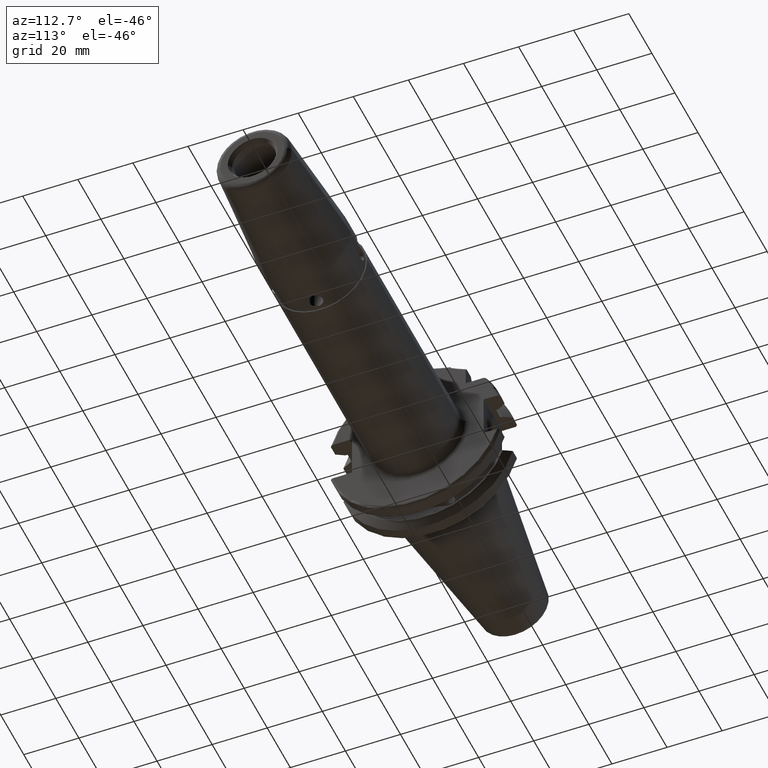
[diagram: clean part render]
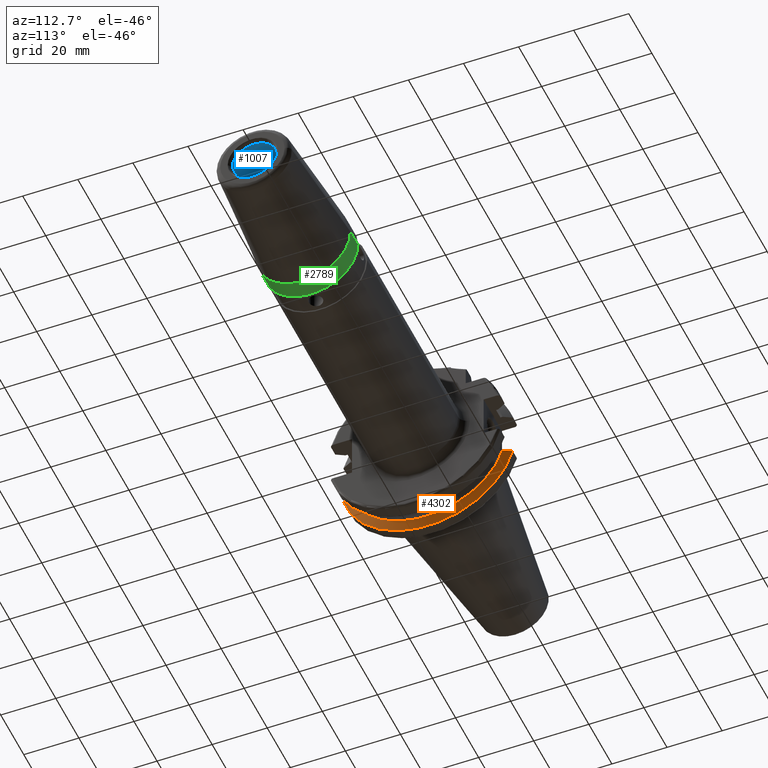
[diagram: same view with three faces highlighted in distinct colors, each labeled with its STEP entity id]
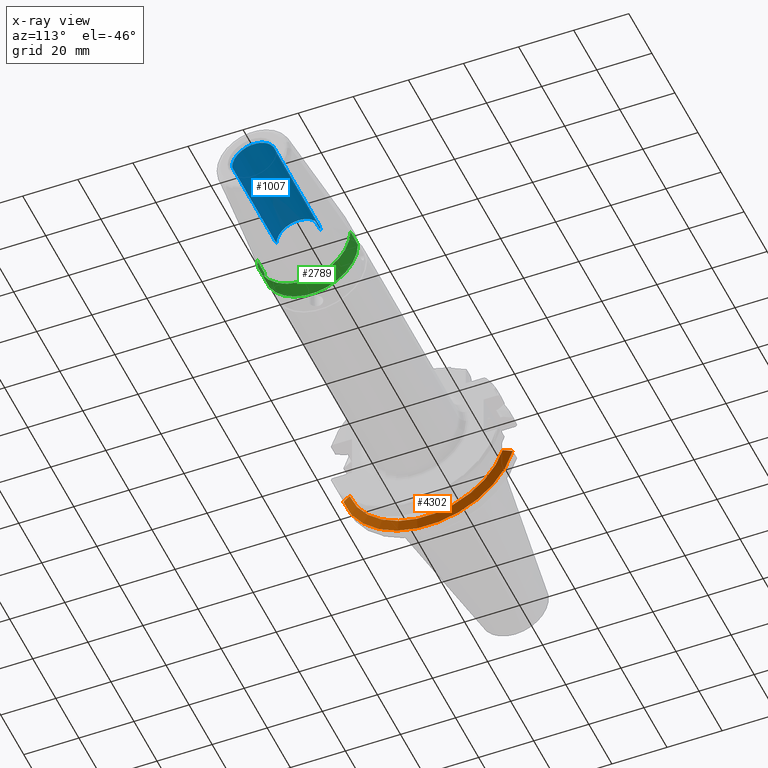
[diagram: x-ray of the same camera — body ghosted, the three highlighted faces saturated]
A machine part, auxiliary view with three faces highlighted in distinct colors.
The next image is the same camera in x-ray (body ghosted, the three faces saturated) — at least one of them is partly hidden behind the body in this view.
Their STEP definitions:

[orange] entity #4302 — the highlighted conical surface has half-angle 60 deg.
#15 = CARTESIAN_POINT ( 'NONE',  ( 9.224999999999999645, 8.049999999999991829, 27.75371168065689886 ) ) ;
#122 = EDGE_LOOP ( 'NONE', ( #4977, #5286, #4369, #906 ) ) ;
#225 = CARTESIAN_POINT ( 'NONE',  ( 7.563729601213531772, 8.049999999999993605, -30.73838195156016440 ) ) ;
#298 = DIRECTION ( 'NONE',  ( -1.000000000000000000, -1.806543779445901364E-16, 0.0000000000000000000 ) ) ;
#605 = VERTEX_POINT ( 'NONE', #1181 ) ;
#749 = CARTESIAN_POINT ( 'NONE',  ( 9.224999999999999645, 8.049999999999991829, 27.75371168065689886 ) ) ;
#906 = ORIENTED_EDGE ( 'NONE', *, *, #7000, .T. ) ;
#1165 = CARTESIAN_POINT ( 'NONE',  ( 7.563729601213531772, -1.734723475976807094E-15, -7.489693497978174534E-17 ) ) ;
#1181 = CARTESIAN_POINT ( 'NONE',  ( 7.563729601213531772, 8.049999999999993605, -30.73838195156016440 ) ) ;
#1372 = EDGE_CURVE ( 'NONE', #605, #5848, #6383, .T. ) ;
#1588 = CIRCLE ( 'NONE', #2981, 31.77499999999999147 ) ;
#1714 = DIRECTION ( 'NONE',  ( 1.910789037267923442E-16, -1.000000000000000000, 0.0000000000000000000 ) ) ;
#1871 = CARTESIAN_POINT ( 'NONE',  ( 8.672853181540689960, 8.049999999999993605, -28.74947433268971153 ) ) ;
#1899 = CARTESIAN_POINT ( 'NONE',  ( 9.224999999999999645, 8.049999999999991829, -27.75371168065689886 ) ) ;
#1975 = VERTEX_POINT ( 'NONE', #4092 ) ;
#2375 = CARTESIAN_POINT ( 'NONE',  ( 7.563729601213531772, 8.049999999999993605, 30.73838195156016440 ) ) ;
#2736 = CARTESIAN_POINT ( 'NONE',  ( 9.225000000000001421, -1.734723475976807094E-15, -7.489693497978174534E-17 ) ) ;
#2981 = AXIS2_PLACEMENT_3D ( 'NONE', #1165, #4961, #1714 ) ;
#3050 = EDGE_CURVE ( 'NONE', #1975, #605, #1588, .T. ) ;
#3564 = CARTESIAN_POINT ( 'NONE',  ( 9.225000000000001421, -1.734723475976807094E-15, -7.489693497978174534E-17 ) ) ;
#3789 = FACE_OUTER_BOUND ( 'NONE', #122, .T. ) ;
#3905 = EDGE_CURVE ( 'NONE', #1975, #6301, #5993, .T. ) ;
#3996 = AXIS2_PLACEMENT_3D ( 'NONE', #3564, #298, #4098 ) ;
#4011 = CARTESIAN_POINT ( 'NONE',  ( 8.672842016305649437, 8.049999999999993605, 28.74949446850084911 ) ) ;
#4092 = CARTESIAN_POINT ( 'NONE',  ( 7.563729601213531772, 8.049999999999993605, 30.73838195156016440 ) ) ;
#4098 = DIRECTION ( 'NONE',  ( 1.800900864017274041E-16, -1.000000000000000000, 0.0000000000000000000 ) ) ;
#4302 = ADVANCED_FACE ( 'NONE', ( #3789 ), #6310, .T. ) ;
#4369 = ORIENTED_EDGE ( 'NONE', *, *, #3905, .T. ) ;
#4492 = CARTESIAN_POINT ( 'NONE',  ( 9.224999999999999645, 8.049999999999991829, -27.75371168065689886 ) ) ;
#4961 = DIRECTION ( 'NONE',  ( -1.000000000000000000, -1.806543779445901364E-16, 0.0000000000000000000 ) ) ;
#4977 = ORIENTED_EDGE ( 'NONE', *, *, #1372, .F. ) ;
#5286 = ORIENTED_EDGE ( 'NONE', *, *, #3050, .F. ) ;
#5651 = CARTESIAN_POINT ( 'NONE',  ( 8.118944993532615229, 8.049999999999993605, -29.74428971667221688 ) ) ;
#5848 = VERTEX_POINT ( 'NONE', #4492 ) ;
#5960 = DIRECTION ( 'NONE',  ( 1.800900864017274041E-16, -1.000000000000000000, 0.0000000000000000000 ) ) ;
#5993 = B_SPLINE_CURVE_WITH_KNOTS ( 'NONE', 3,
 ( #2375, #6159, #4011, #749 ),
 .UNSPECIFIED., .F., .F.,
 ( 4, 4 ),
 ( 0.009974651295812222984, 0.01339048803841443730 ),
 .UNSPECIFIED. ) ;
#6159 = CARTESIAN_POINT ( 'NONE',  ( 8.118936303650578168, 8.049999999999993605, 29.74430527557850112 ) ) ;
#6301 = VERTEX_POINT ( 'NONE', #15 ) ;
#6310 = CONICAL_SURFACE ( 'NONE', #6398, 28.89759526419164004, 1.047197551196594523 ) ;
#6383 = B_SPLINE_CURVE_WITH_KNOTS ( 'NONE', 3,
 ( #225, #5651, #1871, #1899 ),
 .UNSPECIFIED., .F., .F.,
 ( 4, 4 ),
 ( 0.01642707667485877182, 0.01984294225823545962 ),
 .UNSPECIFIED. ) ;
#6398 = AXIS2_PLACEMENT_3D ( 'NONE', #2736, #6499, #5960 ) ;
#6499 = DIRECTION ( 'NONE',  ( -1.000000000000000000, -1.806543779445901364E-16, 0.0000000000000000000 ) ) ;
#6611 = CIRCLE ( 'NONE', #3996, 28.89759526419164004 ) ;
#7000 = EDGE_CURVE ( 'NONE', #6301, #5848, #6611, .T. ) ;

[blue] entity #1007 — the highlighted cylindrical surface (edge-blend (fillet) strip) has radius 7.993 mm, axis along (-1, 0, 0).
#357 = CARTESIAN_POINT ( 'NONE',  ( 5.775853106663938696, 0.0000000000000000000, 7.993000000000000327 ) ) ;
#466 = CIRCLE ( 'NONE', #4259, 7.993000000000000327 ) ;
#468 = ORIENTED_EDGE ( 'NONE', *, *, #4657, .T. ) ;
#534 = VERTEX_POINT ( 'NONE', #3828 ) ;
#776 = ORIENTED_EDGE ( 'NONE', *, *, #1015, .T. ) ;
#788 = VECTOR ( 'NONE', #6358, 1000.000000000000000 ) ;
#956 = LINE ( 'NONE', #3151, #788 ) ;
#1007 = ADVANCED_FACE ( 'NONE', ( #2925 ), #2739, .F. ) ;
#1015 = EDGE_CURVE ( 'NONE', #2764, #2721, #5601, .T. ) ;
#1884 = EDGE_LOOP ( 'NONE', ( #4928, #468, #776, #2592 ) ) ;
#2495 = CARTESIAN_POINT ( 'NONE',  ( 120.0000000000000000, 0.0000000000000000000, 7.993000000000000327 ) ) ;
#2592 = ORIENTED_EDGE ( 'NONE', *, *, #4590, .F. ) ;
#2721 = VERTEX_POINT ( 'NONE', #2495 ) ;
#2739 = CYLINDRICAL_SURFACE ( 'NONE', #6420, 7.993000000000000327 ) ;
#2764 = VERTEX_POINT ( 'NONE', #6852 ) ;
#2917 = CARTESIAN_POINT ( 'NONE',  ( 5.775853106663938696, 0.0000000000000000000, 0.0000000000000000000 ) ) ;
#2925 = FACE_OUTER_BOUND ( 'NONE', #1884, .T. ) ;
#3010 = CARTESIAN_POINT ( 'NONE',  ( 158.5000000000000284, 0.0000000000000000000, 0.0000000000000000000 ) ) ;
#3151 = CARTESIAN_POINT ( 'NONE',  ( 5.775853106663938696, 9.788601865584793834E-16, -7.993000000000000327 ) ) ;
#3383 = DIRECTION ( 'NONE',  ( -1.000000000000000000, 0.0000000000000000000, 0.0000000000000000000 ) ) ;
#3431 = DIRECTION ( 'NONE',  ( 0.0000000000000000000, 0.0000000000000000000, 1.000000000000000000 ) ) ;
#3552 = DIRECTION ( 'NONE',  ( 0.0000000000000000000, 0.0000000000000000000, 1.000000000000000000 ) ) ;
#3828 = CARTESIAN_POINT ( 'NONE',  ( 158.5000000000000284, 1.023050821505350112E-15, 7.993000000000000327 ) ) ;
#3875 = VECTOR ( 'NONE', #5261, 1000.000000000000000 ) ;
#4259 = AXIS2_PLACEMENT_3D ( 'NONE', #3010, #6770, #3552 ) ;
#4462 = CARTESIAN_POINT ( 'NONE',  ( 120.0000000000000000, 0.0000000000000000000, 0.0000000000000000000 ) ) ;
#4491 = DIRECTION ( 'NONE',  ( -1.000000000000000000, 0.0000000000000000000, 0.0000000000000000000 ) ) ;
#4523 = DIRECTION ( 'NONE',  ( 0.0000000000000000000, 0.0000000000000000000, 1.000000000000000000 ) ) ;
#4590 = EDGE_CURVE ( 'NONE', #534, #2721, #5300, .T. ) ;
#4657 = EDGE_CURVE ( 'NONE', #5123, #2764, #956, .T. ) ;
#4928 = ORIENTED_EDGE ( 'NONE', *, *, #6494, .F. ) ;
#5123 = VERTEX_POINT ( 'NONE', #6619 ) ;
#5261 = DIRECTION ( 'NONE',  ( -1.000000000000000000, 0.0000000000000000000, 0.0000000000000000000 ) ) ;
#5300 = LINE ( 'NONE', #357, #3875 ) ;
#5601 = CIRCLE ( 'NONE', #5693, 7.993000000000000327 ) ;
#5693 = AXIS2_PLACEMENT_3D ( 'NONE', #4462, #4491, #4523 ) ;
#6358 = DIRECTION ( 'NONE',  ( -1.000000000000000000, 0.0000000000000000000, 0.0000000000000000000 ) ) ;
#6420 = AXIS2_PLACEMENT_3D ( 'NONE', #2917, #3383, #3431 ) ;
#6494 = EDGE_CURVE ( 'NONE', #5123, #534, #466, .T. ) ;
#6619 = CARTESIAN_POINT ( 'NONE',  ( 158.5000000000000284, 0.0000000000000000000, -7.993000000000000327 ) ) ;
#6770 = DIRECTION ( 'NONE',  ( -1.000000000000000000, 0.0000000000000000000, 0.0000000000000000000 ) ) ;
#6852 = CARTESIAN_POINT ( 'NONE',  ( 120.0000000000000000, 9.788601865584793834E-16, -7.993000000000000327 ) ) ;

[green] entity #2789 — the highlighted cylindrical surface (partial cylindrical patch) has radius 17 mm, axis along (-1, 0, 0).
#48 = VECTOR ( 'NONE', #1533, 1000.000000000000000 ) ;
#147 = DIRECTION ( 'NONE',  ( 0.0000000000000000000, 0.0000000000000000000, 1.000000000000000000 ) ) ;
#398 = DIRECTION ( 'NONE',  ( 0.0000000000000000000, 0.0000000000000000000, 1.000000000000000000 ) ) ;
#936 = EDGE_LOOP ( 'NONE', ( #3888, #5561, #5803, #2415 ) ) ;
#1117 = CARTESIAN_POINT ( 'NONE',  ( 115.5282834233886859, 2.081899558550500280E-15, -17.00000000000000000 ) ) ;
#1399 = CARTESIAN_POINT ( 'NONE',  ( 109.0000000000244853, 0.0000000000000000000, 17.00000000000000000 ) ) ;
#1483 = DIRECTION ( 'NONE',  ( -1.000000000000000000, 0.0000000000000000000, 0.0000000000000000000 ) ) ;
#1533 = DIRECTION ( 'NONE',  ( -1.000000000000000000, 0.0000000000000000000, 0.0000000000000000000 ) ) ;
#1885 = DIRECTION ( 'NONE',  ( -1.000000000000000000, 0.0000000000000000000, 0.0000000000000000000 ) ) ;
#2271 = CYLINDRICAL_SURFACE ( 'NONE', #5263, 17.00000000000000000 ) ;
#2415 = ORIENTED_EDGE ( 'NONE', *, *, #3345, .F. ) ;
#2789 = ADVANCED_FACE ( 'NONE', ( #5326 ), #2271, .T. ) ;
#2798 = LINE ( 'NONE', #6413, #48 ) ;
#2802 = DIRECTION ( 'NONE',  ( -1.000000000000000000, 0.0000000000000000000, 0.0000000000000000000 ) ) ;
#2865 = VECTOR ( 'NONE', #2802, 1000.000000000000000 ) ;
#3013 = CARTESIAN_POINT ( 'NONE',  ( 115.5282834233886859, 0.0000000000000000000, 17.00000000000000000 ) ) ;
#3198 = VERTEX_POINT ( 'NONE', #3013 ) ;
#3345 = EDGE_CURVE ( 'NONE', #3198, #4545, #2798, .T. ) ;
#3422 = DIRECTION ( 'NONE',  ( -1.000000000000000000, 0.0000000000000000000, 0.0000000000000000000 ) ) ;
#3526 = VERTEX_POINT ( 'NONE', #1117 ) ;
#3657 = CARTESIAN_POINT ( 'NONE',  ( 5.775853106663938696, 0.0000000000000000000, 0.0000000000000000000 ) ) ;
#3888 = ORIENTED_EDGE ( 'NONE', *, *, #5149, .T. ) ;
#4132 = CIRCLE ( 'NONE', #6352, 17.00000000000000000 ) ;
#4380 = CARTESIAN_POINT ( 'NONE',  ( 109.0000000000244853, 2.081899558550500280E-15, -17.00000000000000000 ) ) ;
#4545 = VERTEX_POINT ( 'NONE', #1399 ) ;
#4614 = AXIS2_PLACEMENT_3D ( 'NONE', #5143, #1885, #5678 ) ;
#4626 = CIRCLE ( 'NONE', #4614, 17.00000000000000000 ) ;
#4821 = EDGE_CURVE ( 'NONE', #3526, #6315, #6969, .T. ) ;
#5143 = CARTESIAN_POINT ( 'NONE',  ( 109.0000000000244853, 0.0000000000000000000, 0.0000000000000000000 ) ) ;
#5149 = EDGE_CURVE ( 'NONE', #3198, #3526, #4132, .T. ) ;
#5263 = AXIS2_PLACEMENT_3D ( 'NONE', #3657, #1483, #398 ) ;
#5326 = FACE_OUTER_BOUND ( 'NONE', #936, .T. ) ;
#5561 = ORIENTED_EDGE ( 'NONE', *, *, #4821, .T. ) ;
#5678 = DIRECTION ( 'NONE',  ( 0.0000000000000000000, 0.0000000000000000000, 1.000000000000000000 ) ) ;
#5803 = ORIENTED_EDGE ( 'NONE', *, *, #6492, .F. ) ;
#6017 = CARTESIAN_POINT ( 'NONE',  ( 5.775853106663938696, 2.081899558550500280E-15, -17.00000000000000000 ) ) ;
#6315 = VERTEX_POINT ( 'NONE', #4380 ) ;
#6352 = AXIS2_PLACEMENT_3D ( 'NONE', #6639, #3422, #147 ) ;
#6413 = CARTESIAN_POINT ( 'NONE',  ( 5.775853106663938696, 0.0000000000000000000, 17.00000000000000000 ) ) ;
#6492 = EDGE_CURVE ( 'NONE', #4545, #6315, #4626, .T. ) ;
#6639 = CARTESIAN_POINT ( 'NONE',  ( 115.5282834233886859, 0.0000000000000000000, 0.0000000000000000000 ) ) ;
#6969 = LINE ( 'NONE', #6017, #2865 ) ;